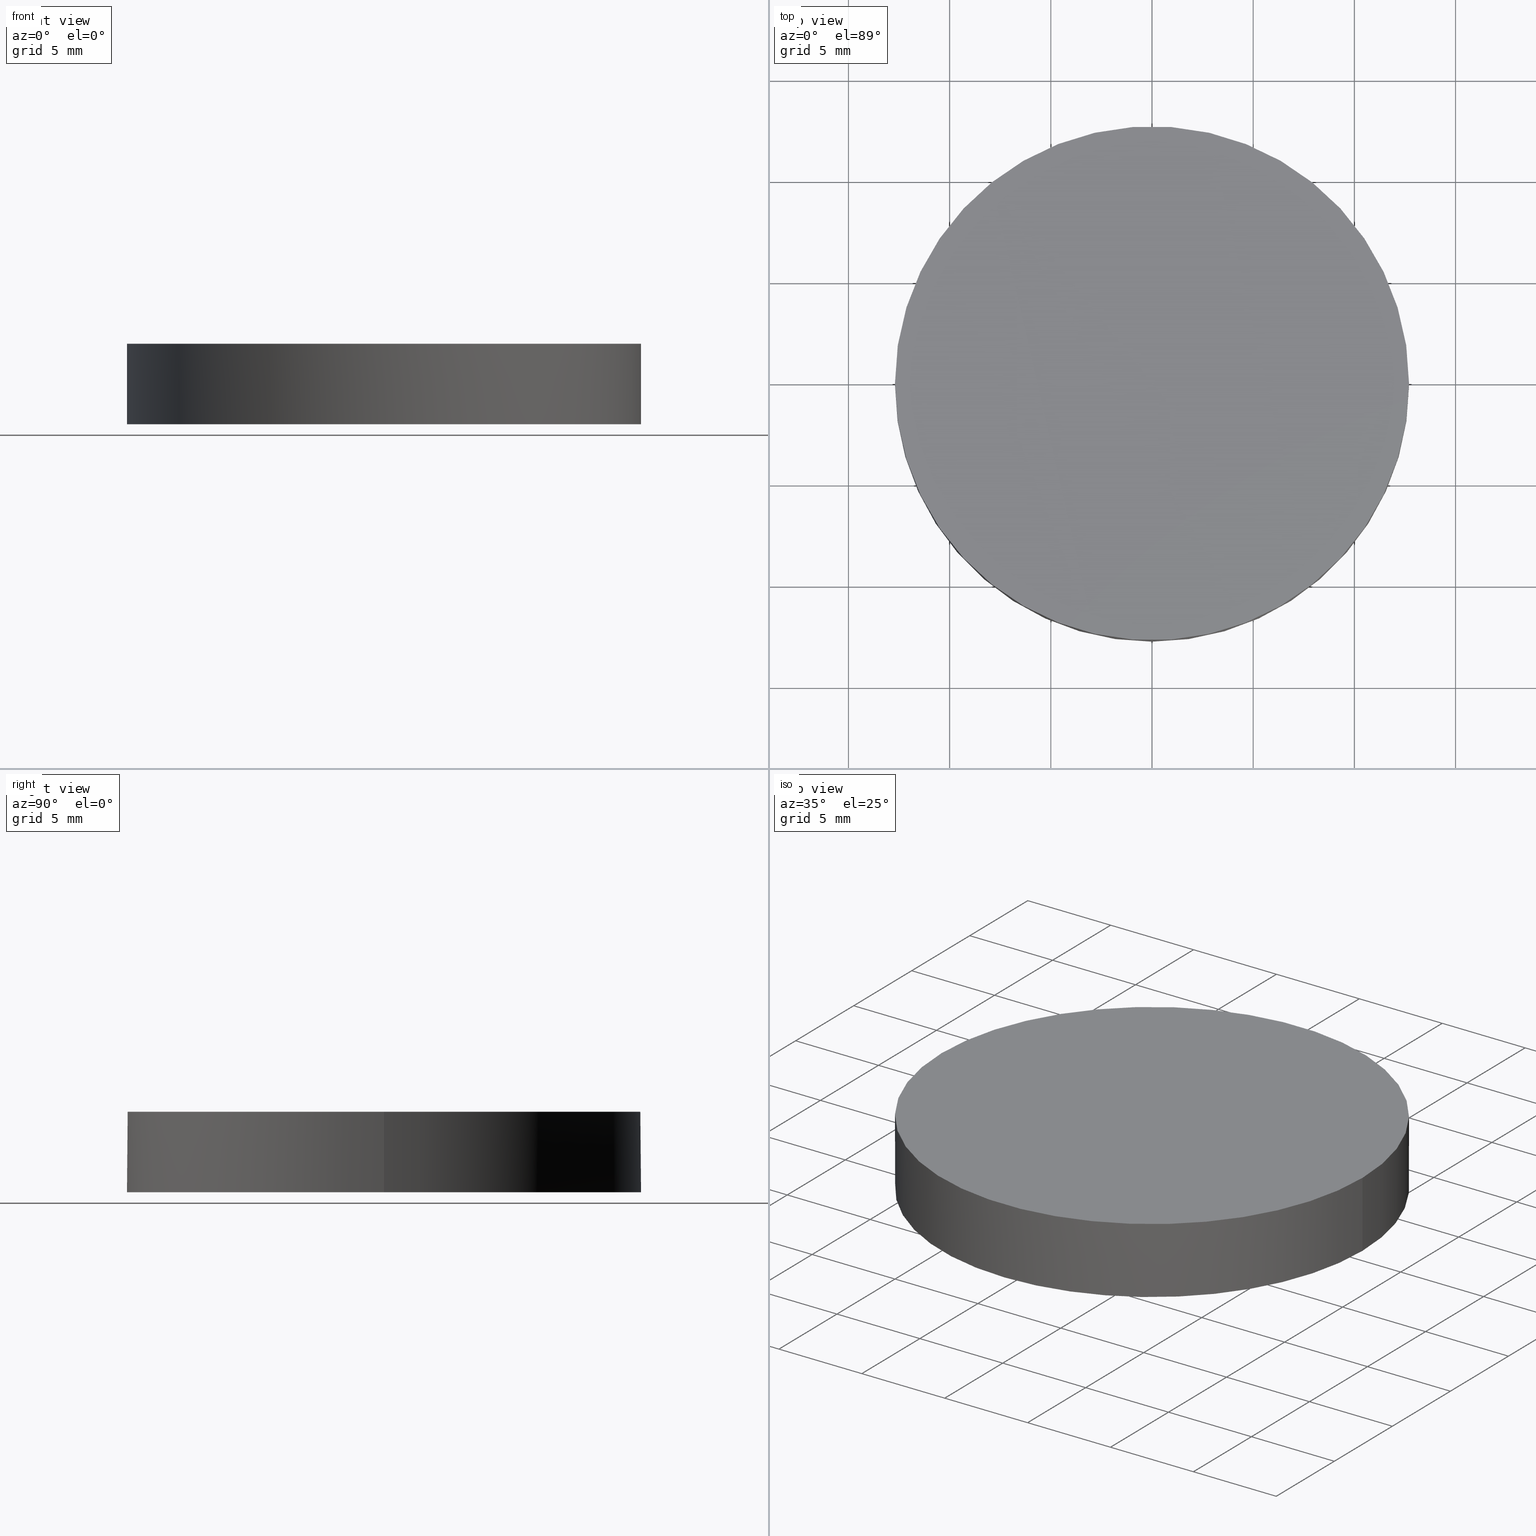
[diagram: canonical four-view strip — front | top / right | iso, engineering-drawing reading convention]
A machine part, canonical four-view strip (front | top / right | iso — engineering-drawing reading convention). The complete STEP part file that produces these views, byte-faithful:
ISO-10303-21;
HEADER;
FILE_DESCRIPTION (( 'STEP AP203' ),
    '1' );
FILE_NAME ('112-0261E BK7 pl-cv 25.4 F-2000.STEP',
    '2019-01-15T13:10:18',
    ( '' ),
    ( '' ),
    'SwSTEP 2.0',
    'SolidWorks 2017',
    '' );
FILE_SCHEMA (( 'CONFIG_CONTROL_DESIGN' ));
ENDSEC;

DATA;
#1 = ORIENTED_EDGE ( 'NONE', *, *, #114, .F. ) ;
#2 = CARTESIAN_POINT ( 'NONE',  ( -3.410605131648479400E-013, 4.284350124377257700, 0.02655075362691400000 ) ) ;
#3 = DATE_TIME_ROLE ( 'classification_date' ) ;
#4 = CARTESIAN_POINT ( 'NONE',  ( 0.0000000000000000000, 26.11199999999999800, 3.899999999999999900 ) ) ;
#5 = DIRECTION ( 'NONE',  ( 0.0000000000000000000, 0.0000000000000000000, 1.000000000000000000 ) ) ;
#6 = CARTESIAN_POINT ( 'NONE',  ( -3.410605131648479900E-013, 12.69999999999737700, -0.07777051506895968400 ) ) ;
#7 = DIRECTION ( 'NONE',  ( 1.000000000000000000, 0.0000000000000000000, 0.0000000000000000000 ) ) ;
#8 = DIRECTION ( 'NONE',  ( 1.000000000000000000, 0.0000000000000000000, 0.0000000000000000000 ) ) ;
#9 = ORIENTED_EDGE ( 'NONE', *, *, #114, .T. ) ;
#10 = CARTESIAN_POINT ( 'NONE',  ( -12.77652327018106800, -4.284350124377328800, -0.05215781067786433300 ) ) ;
#11 = EDGE_LOOP ( 'NONE', ( #92, #216, #119, #184, #21 ) ) ;
#12 = PRODUCT_DEFINITION_FORMATION_WITH_SPECIFIED_SOURCE ( 'ANY', '', #188, .NOT_KNOWN. ) ;
#13 = ADVANCED_FACE ( 'NONE', ( #51 ), #66, .T. ) ;
#14 = VECTOR ( 'NONE', #89, 1000.000000000000000 ) ;
#15 = APPROVAL_PERSON_ORGANIZATION ( #215, #163, #171 ) ;
#16 = VERTEX_POINT ( 'NONE', #94 ) ;
#17 = ADVANCED_FACE ( 'NONE', ( #201 ), #217, .F. ) ;
#18 = CARTESIAN_POINT ( 'NONE',  ( 4.996003610813200500E-016, 2.442490654175340100E-015, -0.07777051506895491000 ) ) ;
#19 = APPROVAL_PERSON_ORGANIZATION ( #108, #174, #219 ) ;
#20 = DIRECTION ( 'NONE',  ( 0.0000000000000000000, 0.0000000000000000000, 1.000000000000000000 ) ) ;
#21 = ORIENTED_EDGE ( 'NONE', *, *, #22, .F. ) ;
#22 = EDGE_CURVE ( 'NONE', #158, #16, #47, .T. ) ;
#23 = COORDINATED_UNIVERSAL_TIME_OFFSET ( 2, 0, .AHEAD. ) ;
#24 = ORIENTED_EDGE ( 'NONE', *, *, #65, .F. ) ;
#25 = CARTESIAN_POINT ( 'NONE',  ( 8.517870741822543200, -4.284350124377328800, 0.0003142336375662477100 ) ) ;
#26 = CC_DESIGN_PERSON_AND_ORGANIZATION_ASSIGNMENT ( #118, #206, ( #12 ) ) ;
#27 = DIRECTION ( 'NONE',  ( 1.000000000000000000, 0.0000000000000000000, -0.0000000000000000000 ) ) ;
#28 = AXIS2_PLACEMENT_3D ( 'NONE', #105, #64, #210 ) ;
#29 = CARTESIAN_POINT ( 'NONE',  ( -3.410605131648479900E-013, -12.85239224256306700, -0.07964818234795778600 ) ) ;
#30 = CIRCLE ( 'NONE', #80, 12.69999999999999900 ) ;
#31 = CARTESIAN_POINT ( 'NONE',  ( -3.410605131648479400E-013, -4.284350124377328800, 0.02655075362691268500 ) ) ;
#32 = CARTESIAN_POINT ( 'NONE',  ( -12.69999999999999900, 3.997792089092478900E-015, -0.07777051506895491000 ) ) ;
#33 = CARTESIAN_POINT ( 'NONE',  ( -8.517870741823264400, -4.284350124377328800, 0.0003142336375944166300 ) ) ;
#34 = CIRCLE ( 'NONE', #150, 12.69999999999999900 ) ;
#35 = CARTESIAN_POINT ( 'NONE',  ( -12.77521486281602500, -12.85239224256306700, -0.1583486863327987500 ) ) ;
#36 = EDGE_CURVE ( 'NONE', #158, #113, #79, .T. ) ;
#37 = PERSON_AND_ORGANIZATION ( #55, #76 ) ;
#38 = EDGE_LOOP ( 'NONE', ( #88, #213, #24 ) ) ;
#39 = CC_DESIGN_DATE_AND_TIME_ASSIGNMENT ( #40, #3, ( #149 ) ) ;
#40 = DATE_AND_TIME ( #91, #139 ) ;
#41 = CARTESIAN_POINT ( 'NONE',  ( 4.258539627846998200, 12.85239224256299200, -0.07964818234795779900 ) ) ;
#42 = CALENDAR_DATE ( 2019, 15, 1 ) ;
#43 =( NAMED_UNIT ( * ) SI_UNIT ( $, .STERADIAN. ) SOLID_ANGLE_UNIT ( ) );
#44 = CARTESIAN_POINT ( 'NONE',  ( 8.517870741822543200, 4.284350124377256800, 0.0003142336375675622500 ) ) ;
#45 = CARTESIAN_POINT ( 'NONE',  ( 4.996003610813200500E-016, 2.442490654175340100E-015, -0.07777051506895491000 ) ) ;
#46 = FACE_OUTER_BOUND ( 'NONE', #11, .T. ) ;
#47 = LINE ( 'NONE', #194, #231 ) ;
#48 = ORIENTED_EDGE ( 'NONE', *, *, #104, .T. ) ;
#49 = CARTESIAN_POINT ( 'NONE',  ( -12.77521486281602500, 12.85239224256299600, -0.1583486863327987500 ) ) ;
#50 = CC_DESIGN_APPROVAL ( #163, ( #149 ) ) ;
#51 = FACE_OUTER_BOUND ( 'NONE', #212, .T. ) ;
#52 = CALENDAR_DATE ( 2019, 15, 1 ) ;
#53 = CLOSED_SHELL ( 'NONE', ( #233, #148, #17, #13, #72 ) ) ;
#54 = DIRECTION ( 'NONE',  ( 1.000000000000000000, 0.0000000000000000000, 0.0000000000000000000 ) ) ;
#55 = PERSON ( 'UNSPECIFIED', 'UNSPECIFIED', 'UNSPECIFIED', ('UNSPECIFIED'), ('UNSPECIFIED'), ('UNSPECIFIED') ) ;
#56 = PERSON_AND_ORGANIZATION_ROLE ( 'classification_officer' ) ;
#57 = CARTESIAN_POINT ( 'NONE',  ( 0.0000000000000000000, 0.0000000000000000000, 0.0000000000000000000 ) ) ;
#58 =( LENGTH_UNIT ( ) NAMED_UNIT ( * ) SI_UNIT ( .MILLI., .METRE. ) );
#59 = ORIENTED_EDGE ( 'NONE', *, *, #22, .T. ) ;
#60 = CC_DESIGN_APPROVAL ( #174, ( #12 ) ) ;
#61 = PERSON_AND_ORGANIZATION_ROLE ( 'design_owner' ) ;
#62 = DIRECTION ( 'NONE',  ( 0.0000000000000000000, 0.0000000000000000000, 1.000000000000000000 ) ) ;
#63 =( GEOMETRIC_REPRESENTATION_CONTEXT ( 3 ) GLOBAL_UNCERTAINTY_ASSIGNED_CONTEXT ( ( #142 ) ) GLOBAL_UNIT_ASSIGNED_CONTEXT ( ( #58, #97, #43 ) ) REPRESENTATION_CONTEXT ( 'NONE', 'WORKASPACE' ) );
#64 = DIRECTION ( 'NONE',  ( -0.0000000000000000000, -0.0000000000000000000, -1.000000000000000000 ) ) ;
#65 = EDGE_CURVE ( 'NONE', #197, #71, #34, .T. ) ;
#66 = CYLINDRICAL_SURFACE ( 'NONE', #175, 12.69999999999999900 ) ;
#67 = CARTESIAN_POINT ( 'NONE',  ( -4.258539627847823400, 12.85239224256299200, -0.07964818234793520600 ) ) ;
#68 = CARTESIAN_POINT ( 'NONE',  ( -4.258975777429124100, -4.284350124377328800, 0.02655075362693526700 ) ) ;
#69 = CARTESIAN_POINT ( 'NONE',  ( -4.258975777429124100, 4.284350124377256800, 0.02655075362693656800 ) ) ;
#70 = DATE_AND_TIME ( #125, #168 ) ;
#71 = VERTEX_POINT ( 'NONE', #141 ) ;
#72 = ADVANCED_FACE ( 'NONE', ( #133 ), #102, .T. ) ;
#73 = PERSON_AND_ORGANIZATION ( #55, #76 ) ;
#74 = ORIENTED_EDGE ( 'NONE', *, *, #151, .F. ) ;
#75 = CC_DESIGN_PERSON_AND_ORGANIZATION_ASSIGNMENT ( #37, #81, ( #12 ) ) ;
#76 = ORGANIZATION ( 'UNSPECIFIED', 'UNSPECIFIED', '' ) ;
#77 = MANIFOLD_SOLID_BREP ( 'Imported1', #53 ) ;
#78 = APPLICATION_PROTOCOL_DEFINITION ( 'international standard', 'config_control_design', 1994, #187 ) ;
#79 = CIRCLE ( 'NONE', #132, 12.69999999999999900 ) ;
#80 = AXIS2_PLACEMENT_3D ( 'NONE', #106, #111, #83 ) ;
#81 = PERSON_AND_ORGANIZATION_ROLE ( 'design_supplier' ) ;
#82 = CIRCLE ( 'NONE', #28, 12.69999999999999900 ) ;
#83 = DIRECTION ( 'NONE',  ( 1.000000000000000000, 0.0000000000000000000, 0.0000000000000000000 ) ) ;
#84 = EDGE_CURVE ( 'NONE', #113, #71, #230, .T. ) ;
#85 = CARTESIAN_POINT ( 'NONE',  ( 4.996003610813200500E-016, 2.442490654175340100E-015, -0.07777051506895491000 ) ) ;
#86 = LOCAL_TIME ( 15, 10, 18.00000000000000000, #95 ) ;
#87 = CARTESIAN_POINT ( 'NONE',  ( -5.932754287840680300E-013, -12.85239224256306700, -0.07964818234793416600 ) ) ;
#88 = ORIENTED_EDGE ( 'NONE', *, *, #165, .F. ) ;
#89 = DIRECTION ( 'NONE',  ( 0.0000000000000000000, 0.0000000000000000000, 1.000000000000000000 ) ) ;
#90 = CC_DESIGN_SECURITY_CLASSIFICATION ( #149, ( #12 ) ) ;
#91 = CALENDAR_DATE ( 2019, 15, 1 ) ;
#92 = ORIENTED_EDGE ( 'NONE', *, *, #36, .T. ) ;
#93 = ADVANCED_BREP_SHAPE_REPRESENTATION ( '112-0261E BK7 pl-cv 25.4 F-2000', ( #77, #164 ), #63 ) ;
#94 = CARTESIAN_POINT ( 'NONE',  ( 12.69999999999999900, 2.442490654175340100E-015, 3.899999999999999900 ) ) ;
#95 = COORDINATED_UNIVERSAL_TIME_OFFSET ( 2, 0, .AHEAD. ) ;
#96 = PERSON_AND_ORGANIZATION_ROLE ( 'creator' ) ;
#97 =( NAMED_UNIT ( * ) PLANE_ANGLE_UNIT ( ) SI_UNIT ( $, .RADIAN. ) );
#98 = CARTESIAN_POINT ( 'NONE',  ( -3.410605131648479900E-013, -1.136868377216160000E-013, -1037.000000000000000 ) ) ;
#99 = APPROVAL_STATUS ( 'not_yet_approved' ) ;
#100 = APPROVAL_DATE_TIME ( #229, #163 ) ;
#101 = PRODUCT_RELATED_PRODUCT_CATEGORY ( 'detail', '', ( #188 ) ) ;
#102 = PLANE ( 'NONE',  #235 ) ;
#103 = CARTESIAN_POINT ( 'NONE',  ( 12.77652327018045500, -4.284350124377328800, -0.05215781067789412900 ) ) ;
#104 = EDGE_CURVE ( 'NONE', #71, #158, #143, .T. ) ;
#105 = CARTESIAN_POINT ( 'NONE',  ( 4.996003610813200500E-016, 2.442490654175340100E-015, 3.899999999999999900 ) ) ;
#106 = CARTESIAN_POINT ( 'NONE',  ( 4.996003610813200500E-016, 2.442490654175340100E-015, 3.899999999999999900 ) ) ;
#107 = PRODUCT_DEFINITION_SHAPE ( 'NONE', 'NONE',  #167 ) ;
#108 = PERSON_AND_ORGANIZATION ( #55, #76 ) ;
#109 = VERTEX_POINT ( 'NONE', #223 ) ;
#110 = CARTESIAN_POINT ( 'NONE',  ( -12.77652327018106800, 4.284350124377257700, -0.05215781067786303500 ) ) ;
#111 = DIRECTION ( 'NONE',  ( -0.0000000000000000000, -0.0000000000000000000, -1.000000000000000000 ) ) ;
#112 = EDGE_LOOP ( 'NONE', ( #1, #129 ) ) ;
#113 = VERTEX_POINT ( 'NONE', #6 ) ;
#114 = EDGE_CURVE ( 'NONE', #16, #109, #82, .T. ) ;
#115 = CYLINDRICAL_SURFACE ( 'NONE', #214, 12.69999999999999900 ) ;
#116 = CARTESIAN_POINT ( 'NONE',  ( 12.77521486281541000, 12.85239224256299600, -0.1583486863328285000 ) ) ;
#117 = APPROVAL_STATUS ( 'not_yet_approved' ) ;
#118 = PERSON_AND_ORGANIZATION ( #55, #76 ) ;
#119 = ORIENTED_EDGE ( 'NONE', *, *, #151, .T. ) ;
#120 = AXIS2_PLACEMENT_3D ( 'NONE', #85, #228, #196 ) ;
#121 = CARTESIAN_POINT ( 'NONE',  ( 4.258975777428295500, -4.284350124377328800, 0.02655075362691268100 ) ) ;
#122 = APPLICATION_PROTOCOL_DEFINITION ( 'international standard', 'config_control_design', 1994, #134 ) ;
#123 = DIRECTION ( 'NONE',  ( 1.000000000000000000, 0.0000000000000000000, 0.0000000000000000000 ) ) ;
#124 = CARTESIAN_POINT ( 'NONE',  ( 12.77521486281541200, -12.85239224256306700, -0.1583486863328285000 ) ) ;
#125 = CALENDAR_DATE ( 2019, 15, 1 ) ;
#126 = CARTESIAN_POINT ( 'NONE',  ( -8.516998450936505100, -12.85239224256306300, -0.1058820155299763400 ) ) ;
#127 = CARTESIAN_POINT ( 'NONE',  ( -5.932754287840680300E-013, 12.85239224256299600, -0.07964818234793416600 ) ) ;
#128 = APPROVAL_DATE_TIME ( #135, #174 ) ;
#129 = ORIENTED_EDGE ( 'NONE', *, *, #140, .F. ) ;
#130 =( BOUNDED_SURFACE ( )  B_SPLINE_SURFACE ( 3, 3, ( 
 ( #49, #178, #67, #127 ),
 ( #110, #179, #69, #226 ),
 ( #10, #33, #68, #198 ),
 ( #35, #126, #181, #87 ) ),
 .UNSPECIFIED., .F., .F., .F. ) 
 B_SPLINE_SURFACE_WITH_KNOTS ( ( 4, 4 ),
 ( 4, 4 ),
 ( 0.0000000000000000000, 1.000000000000000000 ),
 ( 0.0000000000000000000, 1.000000000000000000 ),
 .UNSPECIFIED. ) 
 GEOMETRIC_REPRESENTATION_ITEM ( )  RATIONAL_B_SPLINE_SURFACE ( (
 ( 1.000000000000000000, 0.9999873501613832900, 0.9999873501613832900, 1.000000000000000000),
 ( 0.9999487957683395000, 0.9999361465774481200, 0.9999361465774481200, 0.9999487957683395000),
 ( 0.9999487957683395000, 0.9999361465774481200, 0.9999361465774481200, 0.9999487957683395000),
 ( 1.000000000000000000, 0.9999873501613832900, 0.9999873501613832900, 1.000000000000000000) ) ) 
 REPRESENTATION_ITEM ( '' )  SURFACE ( )  );
#131 = COORDINATED_UNIVERSAL_TIME_OFFSET ( 2, 0, .AHEAD. ) ;
#132 = AXIS2_PLACEMENT_3D ( 'NONE', #221, #176, #207 ) ;
#133 = FACE_OUTER_BOUND ( 'NONE', #112, .T. ) ;
#134 = APPLICATION_CONTEXT ( 'configuration controlled 3d designs of mechanical parts and assemblies' ) ;
#135 = DATE_AND_TIME ( #42, #86 ) ;
#136 = MECHANICAL_CONTEXT ( 'NONE', #134, 'mechanical' ) ;
#137 = CARTESIAN_POINT ( 'NONE',  ( 4.996003610813200500E-016, 2.442490654175340100E-015, -0.07777051506895491000 ) ) ;
#138 = CARTESIAN_POINT ( 'NONE',  ( 12.77652327018045500, 4.284350124377257700, -0.05215781067789281700 ) ) ;
#139 = LOCAL_TIME ( 15, 10, 18.00000000000000000, #23 ) ;
#140 = EDGE_CURVE ( 'NONE', #109, #16, #30, .T. ) ;
#141 = CARTESIAN_POINT ( 'NONE',  ( -3.410605131648479900E-013, -12.69999999999749100, -0.07777051506895968400 ) ) ;
#142 = UNCERTAINTY_MEASURE_WITH_UNIT (LENGTH_MEASURE( 1.000000000000000100E-005 ), #58, 'distance_accuracy_value', 'NONE');
#143 = CIRCLE ( 'NONE', #145, 12.69999999999999900 ) ;
#144 = ORIENTED_EDGE ( 'NONE', *, *, #84, .F. ) ;
#145 = AXIS2_PLACEMENT_3D ( 'NONE', #45, #208, #177 ) ;
#146 = LOCAL_TIME ( 15, 10, 18.00000000000000000, #156 ) ;
#147 = COORDINATED_UNIVERSAL_TIME_OFFSET ( 2, 0, .AHEAD. ) ;
#148 = ADVANCED_FACE ( 'NONE', ( #46 ), #115, .T. ) ;
#149 = SECURITY_CLASSIFICATION ( '', '', #170 ) ;
#150 = AXIS2_PLACEMENT_3D ( 'NONE', #137, #220, #7 ) ;
#151 = EDGE_CURVE ( 'NONE', #197, #109, #186, .T. ) ;
#152 = APPROVAL_DATE_TIME ( #185, #182 ) ;
#153 = CARTESIAN_POINT ( 'NONE',  ( -3.410605131648479900E-013, 12.85239224256299600, -0.07964818234795778600 ) ) ;
#154 = DATE_TIME_ROLE ( 'creation_date' ) ;
#155 = DIRECTION ( 'NONE',  ( 0.0000000000000000000, 0.0000000000000000000, 1.000000000000000000 ) ) ;
#156 = COORDINATED_UNIVERSAL_TIME_OFFSET ( 2, 0, .AHEAD. ) ;
#157 = CC_DESIGN_PERSON_AND_ORGANIZATION_ASSIGNMENT ( #73, #61, ( #188 ) ) ;
#158 = VERTEX_POINT ( 'NONE', #162 ) ;
#159 = APPROVAL_STATUS ( 'not_yet_approved' ) ;
#160 = CIRCLE ( 'NONE', #120, 12.69999999999999900 ) ;
#161 = DIRECTION ( 'NONE',  ( 0.0000000000000000000, 0.0000000000000000000, 1.000000000000000000 ) ) ;
#162 = CARTESIAN_POINT ( 'NONE',  ( 12.69999999999999900, 2.442490654175340100E-015, -0.07777051506895491000 ) ) ;
#163 = APPROVAL ( #99, 'UNSPECIFIED' ) ;
#164 = AXIS2_PLACEMENT_3D ( 'NONE', #57, #62, #189 ) ;
#165 = EDGE_CURVE ( 'NONE', #113, #197, #160, .T. ) ;
#166 = ORIENTED_EDGE ( 'NONE', *, *, #104, .F. ) ;
#167 = PRODUCT_DEFINITION ( 'UNKNOWN', '', #12, #218 ) ;
#168 = LOCAL_TIME ( 15, 10, 18.00000000000000000, #147 ) ;
#169 = CARTESIAN_POINT ( 'NONE',  ( 8.516998450935782100, 12.85239224256299200, -0.1058820155300044900 ) ) ;
#170 = SECURITY_CLASSIFICATION_LEVEL ( 'unclassified' ) ;
#171 = APPROVAL_ROLE ( '' ) ;
#172 = APPROVAL_PERSON_ORGANIZATION ( #180, #182, #205 ) ;
#173 = CARTESIAN_POINT ( 'NONE',  ( 4.258975777428295500, 4.284350124377256800, 0.02655075362691399600 ) ) ;
#174 = APPROVAL ( #159, 'UNSPECIFIED' ) ;
#175 = AXIS2_PLACEMENT_3D ( 'NONE', #18, #20, #54 ) ;
#176 = DIRECTION ( 'NONE',  ( 0.0000000000000000000, 0.0000000000000000000, 1.000000000000000000 ) ) ;
#177 = DIRECTION ( 'NONE',  ( 1.000000000000000000, 0.0000000000000000000, 0.0000000000000000000 ) ) ;
#178 = CARTESIAN_POINT ( 'NONE',  ( -8.516998450936505100, 12.85239224256299200, -0.1058820155299763400 ) ) ;
#179 = CARTESIAN_POINT ( 'NONE',  ( -8.517870741823264400, 4.284350124377256800, 0.0003142336375957177300 ) ) ;
#180 = PERSON_AND_ORGANIZATION ( #55, #76 ) ;
#181 = CARTESIAN_POINT ( 'NONE',  ( -4.258539627847823400, -12.85239224256306300, -0.07964818234793520600 ) ) ;
#182 = APPROVAL ( #117, 'UNSPECIFIED' ) ;
#183 = PERSON_AND_ORGANIZATION ( #55, #76 ) ;
#184 = ORIENTED_EDGE ( 'NONE', *, *, #140, .T. ) ;
#185 = DATE_AND_TIME ( #52, #224 ) ;
#186 = LINE ( 'NONE', #32, #14 ) ;
#187 = APPLICATION_CONTEXT ( 'configuration controlled 3d designs of mechanical parts and assemblies' ) ;
#188 = PRODUCT ( '112-0261E BK7 pl-cv 25.4 F-2000', '112-0261E BK7 pl-cv 25.4 F-2000', '', ( #136 ) ) ;
#189 = DIRECTION ( 'NONE',  ( 1.000000000000000000, 0.0000000000000000000, 0.0000000000000000000 ) ) ;
#190 = CC_DESIGN_APPROVAL ( #182, ( #167 ) ) ;
#191 = CALENDAR_DATE ( 2019, 15, 1 ) ;
#192 = CARTESIAN_POINT ( 'NONE',  ( 8.516998450935782100, -12.85239224256306300, -0.1058820155300044900 ) ) ;
#193 = DIRECTION ( 'NONE',  ( 0.0000000000000000000, 1.000000000000000000, 4.282441753616804200E-016 ) ) ;
#194 = CARTESIAN_POINT ( 'NONE',  ( 12.69999999999999900, 2.442490654175340100E-015, -0.07777051506895491000 ) ) ;
#195 = PERSON_AND_ORGANIZATION ( #55, #76 ) ;
#196 = DIRECTION ( 'NONE',  ( 1.000000000000000000, 0.0000000000000000000, 0.0000000000000000000 ) ) ;
#197 = VERTEX_POINT ( 'NONE', #211 ) ;
#198 = CARTESIAN_POINT ( 'NONE',  ( -5.950101522600447300E-013, -4.284350124377328800, 0.02655075362693631200 ) ) ;
#199 = CARTESIAN_POINT ( 'NONE',  ( 4.996003610813200500E-016, 2.442490654175340100E-015, -0.07777051506895491000 ) ) ;
#200 = AXIS2_PLACEMENT_3D ( 'NONE', #98, #123, #193 ) ;
#201 = FACE_OUTER_BOUND ( 'NONE', #204, .T. ) ;
#202 = CC_DESIGN_PERSON_AND_ORGANIZATION_ASSIGNMENT ( #195, #96, ( #167 ) ) ;
#203 = FACE_OUTER_BOUND ( 'NONE', #38, .T. ) ;
#204 = EDGE_LOOP ( 'NONE', ( #144, #232, #166 ) ) ;
#205 = APPROVAL_ROLE ( '' ) ;
#206 = PERSON_AND_ORGANIZATION_ROLE ( 'creator' ) ;
#207 = DIRECTION ( 'NONE',  ( 1.000000000000000000, 0.0000000000000000000, 0.0000000000000000000 ) ) ;
#208 = DIRECTION ( 'NONE',  ( 0.0000000000000000000, 0.0000000000000000000, 1.000000000000000000 ) ) ;
#209 = ORIENTED_EDGE ( 'NONE', *, *, #65, .T. ) ;
#210 = DIRECTION ( 'NONE',  ( 1.000000000000000000, 0.0000000000000000000, 0.0000000000000000000 ) ) ;
#211 = CARTESIAN_POINT ( 'NONE',  ( -12.69999999999999900, 3.997792089092478900E-015, -0.07777051506895491000 ) ) ;
#212 = EDGE_LOOP ( 'NONE', ( #74, #209, #48, #59, #9 ) ) ;
#213 = ORIENTED_EDGE ( 'NONE', *, *, #84, .T. ) ;
#214 = AXIS2_PLACEMENT_3D ( 'NONE', #199, #161, #8 ) ;
#215 = PERSON_AND_ORGANIZATION ( #55, #76 ) ;
#216 = ORIENTED_EDGE ( 'NONE', *, *, #165, .T. ) ;
#217 =( BOUNDED_SURFACE ( )  B_SPLINE_SURFACE ( 3, 3, ( 
 ( #153, #41, #169, #116 ),
 ( #2, #173, #44, #138 ),
 ( #31, #121, #25, #103 ),
 ( #29, #225, #192, #124 ) ),
 .UNSPECIFIED., .F., .F., .F. ) 
 B_SPLINE_SURFACE_WITH_KNOTS ( ( 4, 4 ),
 ( 4, 4 ),
 ( 0.0000000000000000000, 1.000000000000000000 ),
 ( 0.0000000000000000000, 1.000000000000000000 ),
 .UNSPECIFIED. ) 
 GEOMETRIC_REPRESENTATION_ITEM ( )  RATIONAL_B_SPLINE_SURFACE ( (
 ( 1.000000000000000000, 0.9999873501613832900, 0.9999873501613832900, 1.000000000000000000),
 ( 0.9999487957683395000, 0.9999361465774481200, 0.9999361465774481200, 0.9999487957683395000),
 ( 0.9999487957683395000, 0.9999361465774481200, 0.9999361465774481200, 0.9999487957683395000),
 ( 1.000000000000000000, 0.9999873501613832900, 0.9999873501613832900, 1.000000000000000000) ) ) 
 REPRESENTATION_ITEM ( '' )  SURFACE ( )  );
#218 = DESIGN_CONTEXT ( 'detailed design', #187, 'design' ) ;
#219 = APPROVAL_ROLE ( '' ) ;
#220 = DIRECTION ( 'NONE',  ( 0.0000000000000000000, 0.0000000000000000000, 1.000000000000000000 ) ) ;
#221 = CARTESIAN_POINT ( 'NONE',  ( 4.996003610813200500E-016, 2.442490654175340100E-015, -0.07777051506895491000 ) ) ;
#222 = CC_DESIGN_DATE_AND_TIME_ASSIGNMENT ( #70, #154, ( #167 ) ) ;
#223 = CARTESIAN_POINT ( 'NONE',  ( -12.69999999999999900, 3.997792089092478900E-015, 3.899999999999999900 ) ) ;
#224 = LOCAL_TIME ( 15, 10, 18.00000000000000000, #131 ) ;
#225 = CARTESIAN_POINT ( 'NONE',  ( 4.258539627846998200, -12.85239224256306300, -0.07964818234795779900 ) ) ;
#226 = CARTESIAN_POINT ( 'NONE',  ( -5.950101522600447300E-013, 4.284350124377257700, 0.02655075362693761300 ) ) ;
#227 = SHAPE_DEFINITION_REPRESENTATION ( #107, #93 ) ;
#228 = DIRECTION ( 'NONE',  ( 0.0000000000000000000, 0.0000000000000000000, 1.000000000000000000 ) ) ;
#229 = DATE_AND_TIME ( #191, #146 ) ;
#230 = CIRCLE ( 'NONE', #200, 1037.000000000000000 ) ;
#231 = VECTOR ( 'NONE', #155, 1000.000000000000000 ) ;
#232 = ORIENTED_EDGE ( 'NONE', *, *, #36, .F. ) ;
#233 = ADVANCED_FACE ( 'NONE', ( #203 ), #130, .F. ) ;
#234 = CC_DESIGN_PERSON_AND_ORGANIZATION_ASSIGNMENT ( #183, #56, ( #149 ) ) ;
#235 = AXIS2_PLACEMENT_3D ( 'NONE', #4, #5, #27 ) ;
ENDSEC;
END-ISO-10303-21;
